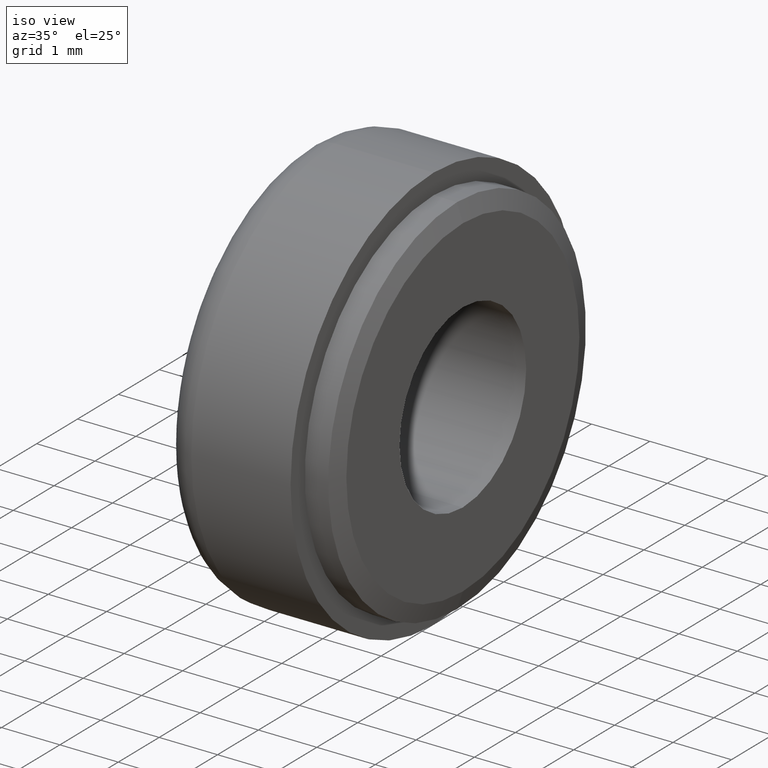
[diagram: clean part render]
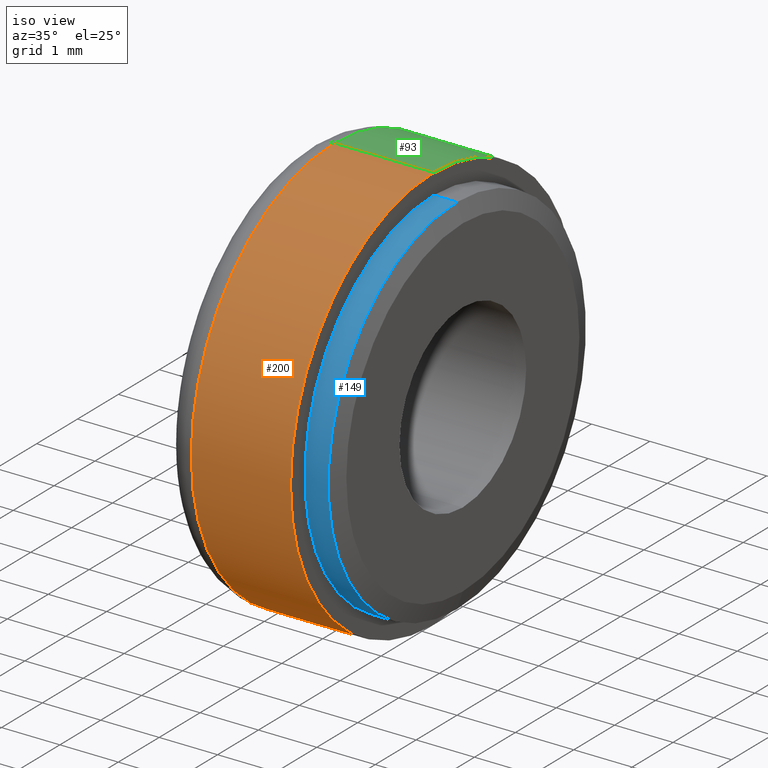
[diagram: same view with three faces highlighted in distinct colors, each labeled with its STEP entity id]
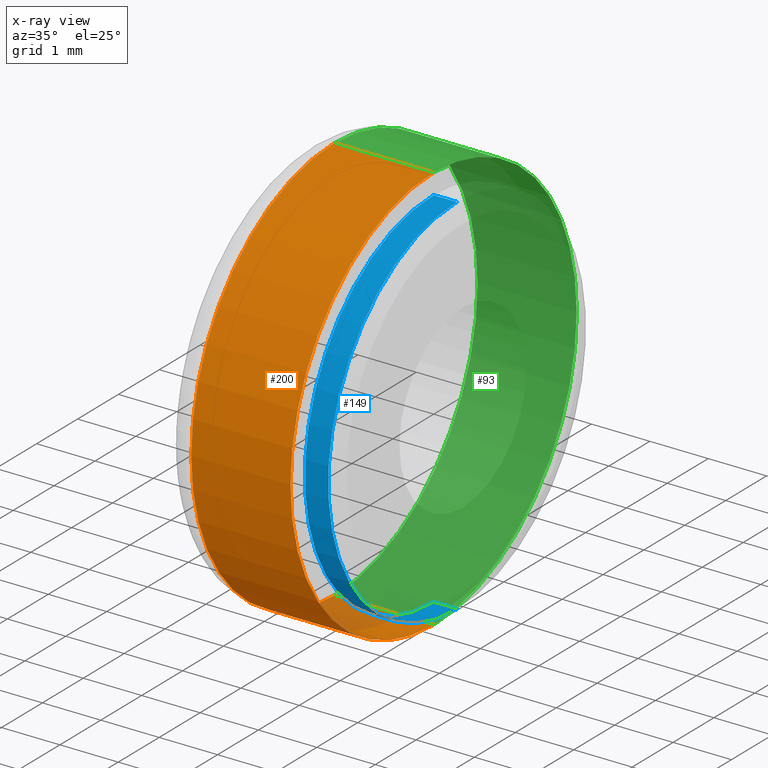
[diagram: x-ray of the same camera — body ghosted, the three highlighted faces saturated]
A machine part, iso view with three faces highlighted in distinct colors.
The next image is the same camera in x-ray (body ghosted, the three faces saturated) — at least one of them is partly hidden behind the body in this view.
Their STEP definitions:

[orange] entity #200 — the highlighted cylindrical surface (partial cylindrical patch) has radius 3.5 mm, axis along (-1, -0, -0).
#7 = CARTESIAN_POINT ( 'NONE',  ( 2.200000000000000200, 4.286263797015736600E-016, -3.500000000000000000 ) ) ;
#54 = DIRECTION ( 'NONE',  ( 1.000000000000000000, 0.0000000000000000000, 0.0000000000000000000 ) ) ;
#63 = DIRECTION ( 'NONE',  ( 0.0000000000000000000, 0.0000000000000000000, -1.000000000000000000 ) ) ;
#89 = VECTOR ( 'NONE', #236, 1000.000000000000000 ) ;
#100 = FACE_OUTER_BOUND ( 'NONE', #580, .T. ) ;
#108 = ORIENTED_EDGE ( 'NONE', *, *, #405, .T. ) ;
#117 = ORIENTED_EDGE ( 'NONE', *, *, #397, .F. ) ;
#134 = DIRECTION ( 'NONE',  ( 0.0000000000000000000, 0.0000000000000000000, 1.000000000000000000 ) ) ;
#155 = AXIS2_PLACEMENT_3D ( 'NONE', #650, #173, #134 ) ;
#173 = DIRECTION ( 'NONE',  ( -1.000000000000000000, -0.0000000000000000000, -0.0000000000000000000 ) ) ;
#177 = DIRECTION ( 'NONE',  ( 1.000000000000000000, 0.0000000000000000000, 0.0000000000000000000 ) ) ;
#184 = CARTESIAN_POINT ( 'NONE',  ( 2.200000000000000200, 4.286263797015736600E-016, -3.500000000000000000 ) ) ;
#197 = LINE ( 'NONE', #184, #625 ) ;
#200 = ADVANCED_FACE ( 'NONE', ( #100 ), #223, .T. ) ;
#206 = AXIS2_PLACEMENT_3D ( 'NONE', #457, #54, #399 ) ;
#223 = CYLINDRICAL_SURFACE ( 'NONE', #155, 3.500000000000000000 ) ;
#226 = CARTESIAN_POINT ( 'NONE',  ( 0.5000000000000000000, 0.0000000000000000000, 0.0000000000000000000 ) ) ;
#236 = DIRECTION ( 'NONE',  ( -1.000000000000000000, -0.0000000000000000000, -0.0000000000000000000 ) ) ;
#246 = CIRCLE ( 'NONE', #206, 3.500000000000000000 ) ;
#281 = AXIS2_PLACEMENT_3D ( 'NONE', #226, #177, #63 ) ;
#283 = CARTESIAN_POINT ( 'NONE',  ( 0.5000000000000000000, 0.0000000000000000000, 3.500000000000000000 ) ) ;
#293 = CARTESIAN_POINT ( 'NONE',  ( 2.200000000000000200, 0.0000000000000000000, 3.500000000000000000 ) ) ;
#296 = VERTEX_POINT ( 'NONE', #356 ) ;
#323 = VERTEX_POINT ( 'NONE', #7 ) ;
#356 = CARTESIAN_POINT ( 'NONE',  ( 0.5000000000000000000, 4.286263797015736600E-016, -3.500000000000000000 ) ) ;
#373 = VERTEX_POINT ( 'NONE', #386 ) ;
#380 = CIRCLE ( 'NONE', #281, 3.500000000000000000 ) ;
#386 = CARTESIAN_POINT ( 'NONE',  ( 2.200000000000000200, 0.0000000000000000000, 3.500000000000000000 ) ) ;
#397 = EDGE_CURVE ( 'NONE', #373, #323, #246, .T. ) ;
#399 = DIRECTION ( 'NONE',  ( 0.0000000000000000000, 0.0000000000000000000, -1.000000000000000000 ) ) ;
#405 = EDGE_CURVE ( 'NONE', #373, #513, #529, .T. ) ;
#439 = EDGE_CURVE ( 'NONE', #513, #296, #380, .T. ) ;
#454 = DIRECTION ( 'NONE',  ( -1.000000000000000000, -0.0000000000000000000, -0.0000000000000000000 ) ) ;
#457 = CARTESIAN_POINT ( 'NONE',  ( 2.200000000000000200, 0.0000000000000000000, 0.0000000000000000000 ) ) ;
#491 = EDGE_CURVE ( 'NONE', #323, #296, #197, .T. ) ;
#513 = VERTEX_POINT ( 'NONE', #283 ) ;
#529 = LINE ( 'NONE', #293, #89 ) ;
#570 = ORIENTED_EDGE ( 'NONE', *, *, #439, .T. ) ;
#580 = EDGE_LOOP ( 'NONE', ( #598, #117, #108, #570 ) ) ;
#598 = ORIENTED_EDGE ( 'NONE', *, *, #491, .F. ) ;
#625 = VECTOR ( 'NONE', #454, 1000.000000000000000 ) ;
#650 = CARTESIAN_POINT ( 'NONE',  ( 2.200000000000000200, 0.0000000000000000000, 0.0000000000000000000 ) ) ;

[blue] entity #149 — the highlighted cylindrical surface (partial cylindrical patch) has radius 3.15 mm, axis along (-1, -0, -0).
#39 = AXIS2_PLACEMENT_3D ( 'NONE', #676, #168, #260 ) ;
#61 = DIRECTION ( 'NONE',  ( -1.000000000000000000, -0.0000000000000000000, -0.0000000000000000000 ) ) ;
#71 = LINE ( 'NONE', #408, #320 ) ;
#111 = VERTEX_POINT ( 'NONE', #112 ) ;
#112 = CARTESIAN_POINT ( 'NONE',  ( 2.100000000000001000, 3.857637417314162700E-016, -3.149999999999999900 ) ) ;
#125 = DIRECTION ( 'NONE',  ( 0.0000000000000000000, 0.0000000000000000000, 1.000000000000000000 ) ) ;
#130 = AXIS2_PLACEMENT_3D ( 'NONE', #589, #61, #125 ) ;
#136 = FACE_OUTER_BOUND ( 'NONE', #664, .T. ) ;
#149 = ADVANCED_FACE ( 'NONE', ( #136 ), #257, .T. ) ;
#166 = EDGE_CURVE ( 'NONE', #632, #691, #572, .T. ) ;
#168 = DIRECTION ( 'NONE',  ( -1.000000000000000000, -0.0000000000000000000, -0.0000000000000000000 ) ) ;
#178 = VERTEX_POINT ( 'NONE', #222 ) ;
#180 = EDGE_CURVE ( 'NONE', #111, #632, #704, .T. ) ;
#181 = DIRECTION ( 'NONE',  ( 0.0000000000000000000, 0.0000000000000000000, 1.000000000000000000 ) ) ;
#187 = DIRECTION ( 'NONE',  ( -1.000000000000000000, -0.0000000000000000000, -0.0000000000000000000 ) ) ;
#203 = ORIENTED_EDGE ( 'NONE', *, *, #567, .F. ) ;
#222 = CARTESIAN_POINT ( 'NONE',  ( 1.700000000000000000, 3.857637417314162700E-016, -3.149999999999999900 ) ) ;
#229 = DIRECTION ( 'NONE',  ( -1.000000000000000000, -0.0000000000000000000, -0.0000000000000000000 ) ) ;
#247 = CARTESIAN_POINT ( 'NONE',  ( 1.700000000000000000, 0.0000000000000000000, 3.149999999999999900 ) ) ;
#257 = CYLINDRICAL_SURFACE ( 'NONE', #39, 3.149999999999999900 ) ;
#260 = DIRECTION ( 'NONE',  ( 0.0000000000000000000, 0.0000000000000000000, 1.000000000000000000 ) ) ;
#263 = ORIENTED_EDGE ( 'NONE', *, *, #498, .F. ) ;
#320 = VECTOR ( 'NONE', #229, 1000.000000000000000 ) ;
#355 = CARTESIAN_POINT ( 'NONE',  ( 2.100000000000001000, 0.0000000000000000000, 3.149999999999999900 ) ) ;
#390 = ORIENTED_EDGE ( 'NONE', *, *, #180, .T. ) ;
#408 = CARTESIAN_POINT ( 'NONE',  ( -0.1100000000000000700, 3.857637417314162700E-016, -3.149999999999999900 ) ) ;
#412 = CIRCLE ( 'NONE', #130, 3.149999999999999900 ) ;
#433 = CARTESIAN_POINT ( 'NONE',  ( -0.1100000000000000700, 0.0000000000000000000, 3.149999999999999900 ) ) ;
#498 = EDGE_CURVE ( 'NONE', #111, #178, #71, .T. ) ;
#540 = VECTOR ( 'NONE', #548, 1000.000000000000000 ) ;
#548 = DIRECTION ( 'NONE',  ( -1.000000000000000000, -0.0000000000000000000, -0.0000000000000000000 ) ) ;
#567 = EDGE_CURVE ( 'NONE', #178, #691, #412, .T. ) ;
#572 = LINE ( 'NONE', #433, #540 ) ;
#589 = CARTESIAN_POINT ( 'NONE',  ( 1.700000000000000000, 0.0000000000000000000, 0.0000000000000000000 ) ) ;
#632 = VERTEX_POINT ( 'NONE', #355 ) ;
#664 = EDGE_LOOP ( 'NONE', ( #263, #390, #675, #203 ) ) ;
#675 = ORIENTED_EDGE ( 'NONE', *, *, #166, .T. ) ;
#676 = CARTESIAN_POINT ( 'NONE',  ( -0.1100000000000000700, 0.0000000000000000000, 0.0000000000000000000 ) ) ;
#691 = VERTEX_POINT ( 'NONE', #247 ) ;
#702 = AXIS2_PLACEMENT_3D ( 'NONE', #731, #187, #181 ) ;
#704 = CIRCLE ( 'NONE', #702, 3.149999999999999900 ) ;
#731 = CARTESIAN_POINT ( 'NONE',  ( 2.100000000000001000, 0.0000000000000000000, 0.0000000000000000000 ) ) ;

[green] entity #93 — the highlighted cylindrical surface (partial cylindrical patch) has radius 3.5 mm, axis along (-1, -0, -0).
#7 = CARTESIAN_POINT ( 'NONE',  ( 2.200000000000000200, 4.286263797015736600E-016, -3.500000000000000000 ) ) ;
#89 = VECTOR ( 'NONE', #236, 1000.000000000000000 ) ;
#93 = ADVANCED_FACE ( 'NONE', ( #377 ), #432, .T. ) ;
#142 = ORIENTED_EDGE ( 'NONE', *, *, #405, .F. ) ;
#184 = CARTESIAN_POINT ( 'NONE',  ( 2.200000000000000200, 4.286263797015736600E-016, -3.500000000000000000 ) ) ;
#196 = CARTESIAN_POINT ( 'NONE',  ( 2.200000000000000200, 0.0000000000000000000, 0.0000000000000000000 ) ) ;
#197 = LINE ( 'NONE', #184, #625 ) ;
#236 = DIRECTION ( 'NONE',  ( -1.000000000000000000, -0.0000000000000000000, -0.0000000000000000000 ) ) ;
#250 = DIRECTION ( 'NONE',  ( 0.0000000000000000000, 0.0000000000000000000, -1.000000000000000000 ) ) ;
#283 = CARTESIAN_POINT ( 'NONE',  ( 0.5000000000000000000, 0.0000000000000000000, 3.500000000000000000 ) ) ;
#293 = CARTESIAN_POINT ( 'NONE',  ( 2.200000000000000200, 0.0000000000000000000, 3.500000000000000000 ) ) ;
#296 = VERTEX_POINT ( 'NONE', #356 ) ;
#323 = VERTEX_POINT ( 'NONE', #7 ) ;
#356 = CARTESIAN_POINT ( 'NONE',  ( 0.5000000000000000000, 4.286263797015736600E-016, -3.500000000000000000 ) ) ;
#361 = AXIS2_PLACEMENT_3D ( 'NONE', #612, #690, #400 ) ;
#373 = VERTEX_POINT ( 'NONE', #386 ) ;
#377 = FACE_OUTER_BOUND ( 'NONE', #550, .T. ) ;
#386 = CARTESIAN_POINT ( 'NONE',  ( 2.200000000000000200, 0.0000000000000000000, 3.500000000000000000 ) ) ;
#400 = DIRECTION ( 'NONE',  ( 0.0000000000000000000, 0.0000000000000000000, -1.000000000000000000 ) ) ;
#403 = ORIENTED_EDGE ( 'NONE', *, *, #491, .T. ) ;
#405 = EDGE_CURVE ( 'NONE', #373, #513, #529, .T. ) ;
#406 = ORIENTED_EDGE ( 'NONE', *, *, #456, .T. ) ;
#432 = CYLINDRICAL_SURFACE ( 'NONE', #652, 3.500000000000000000 ) ;
#454 = DIRECTION ( 'NONE',  ( -1.000000000000000000, -0.0000000000000000000, -0.0000000000000000000 ) ) ;
#456 = EDGE_CURVE ( 'NONE', #296, #513, #665, .T. ) ;
#491 = EDGE_CURVE ( 'NONE', #323, #296, #197, .T. ) ;
#496 = DIRECTION ( 'NONE',  ( 0.0000000000000000000, 0.0000000000000000000, 1.000000000000000000 ) ) ;
#513 = VERTEX_POINT ( 'NONE', #283 ) ;
#529 = LINE ( 'NONE', #293, #89 ) ;
#533 = AXIS2_PLACEMENT_3D ( 'NONE', #196, #587, #250 ) ;
#550 = EDGE_LOOP ( 'NONE', ( #714, #403, #406, #142 ) ) ;
#551 = CARTESIAN_POINT ( 'NONE',  ( 2.200000000000000200, 0.0000000000000000000, 0.0000000000000000000 ) ) ;
#587 = DIRECTION ( 'NONE',  ( 1.000000000000000000, 0.0000000000000000000, 0.0000000000000000000 ) ) ;
#607 = DIRECTION ( 'NONE',  ( -1.000000000000000000, -0.0000000000000000000, -0.0000000000000000000 ) ) ;
#612 = CARTESIAN_POINT ( 'NONE',  ( 0.5000000000000000000, 0.0000000000000000000, 0.0000000000000000000 ) ) ;
#625 = VECTOR ( 'NONE', #454, 1000.000000000000000 ) ;
#633 = CIRCLE ( 'NONE', #533, 3.500000000000000000 ) ;
#652 = AXIS2_PLACEMENT_3D ( 'NONE', #551, #607, #496 ) ;
#665 = CIRCLE ( 'NONE', #361, 3.500000000000000000 ) ;
#690 = DIRECTION ( 'NONE',  ( 1.000000000000000000, 0.0000000000000000000, 0.0000000000000000000 ) ) ;
#705 = EDGE_CURVE ( 'NONE', #323, #373, #633, .T. ) ;
#714 = ORIENTED_EDGE ( 'NONE', *, *, #705, .F. ) ;